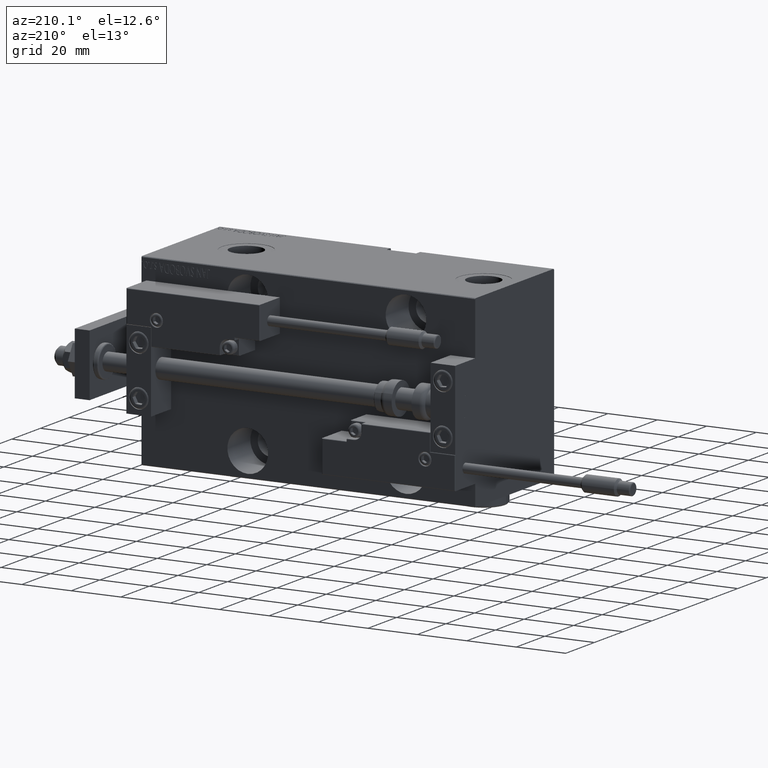
[diagram: clean part render]
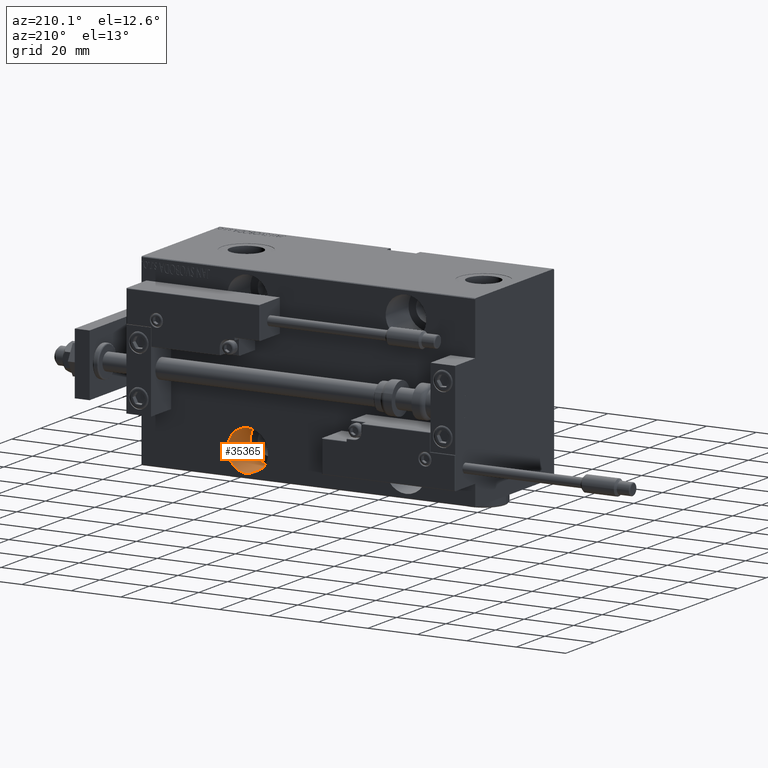
[diagram: same view with one face highlighted and labeled with its STEP entity id]
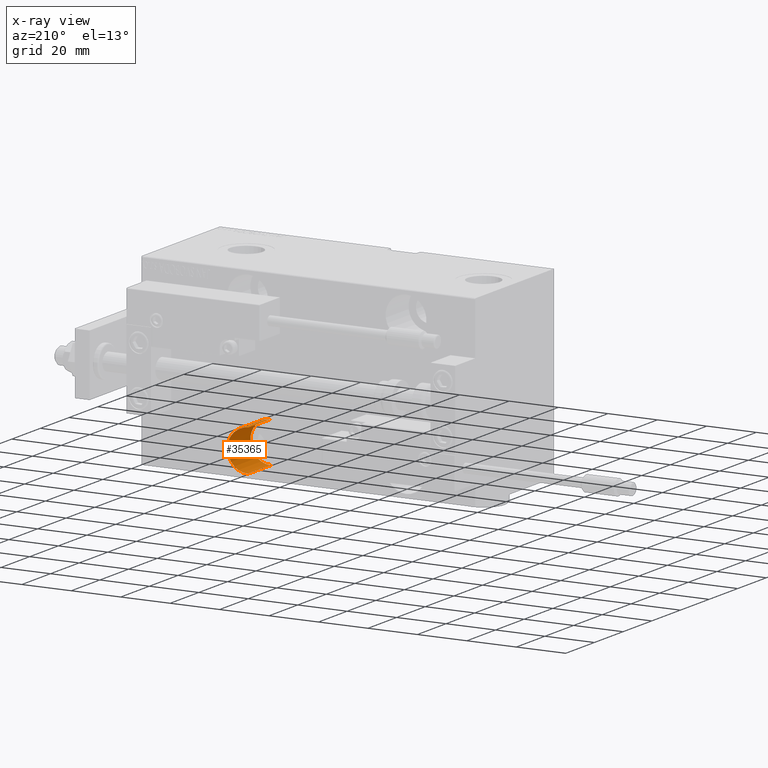
[diagram: x-ray of the same camera — body ghosted, the highlighted face saturated]
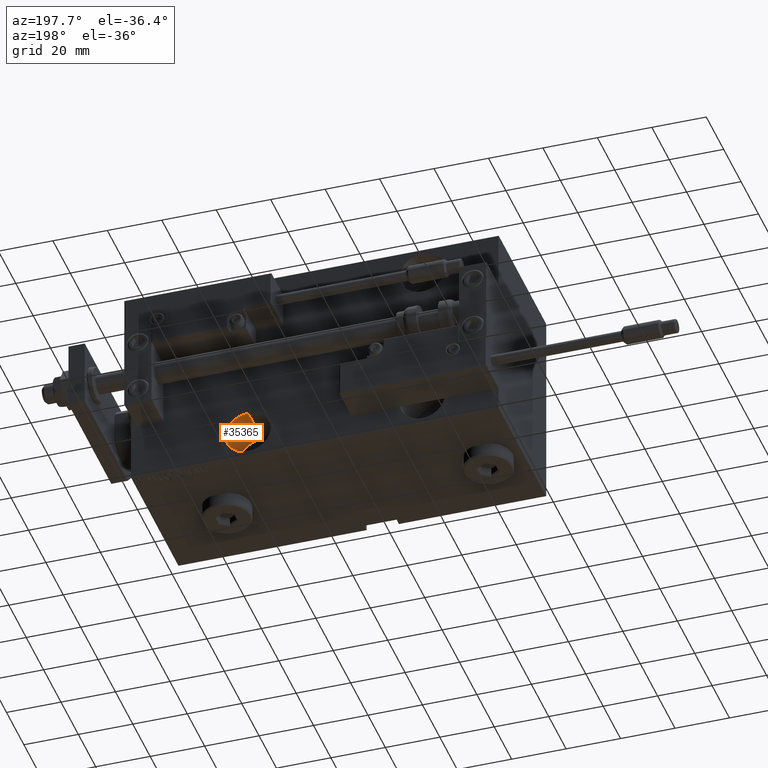
[diagram: same view with one face highlighted and labeled with its STEP entity id]
A machine part, auxiliary view. The second image highlights one B-rep face of the part: STEP entity #35365.
The next image is the same camera in x-ray: the body ghosted, the highlighted face saturated — about 0% of this face is hidden behind the body in this view.
A second angle (auxiliary view) of the same face is appended — the face is thin or edge-on in the first view.
In plain terms, the highlighted cylindrical surface (edge-blend (fillet) strip) has radius 8.25 mm, axis along (0, 1, -0).
Its self-contained STEP definition (entity closure, byte-faithful):
#2058 = EDGE_CURVE ( 'NONE', #16867, #43489, #46313, .T. ) ;
#8103 = DIRECTION ( 'NONE',  ( 0.000000000000000000, 0.000000000000000000, -1.000000000000000000 ) ) ;
#8612 = EDGE_CURVE ( 'NONE', #19389, #28300, #14854, .T. ) ;
#10436 = DIRECTION ( 'NONE',  ( 0.000000000000000000, -1.000000000000000000, 0.000000000000000000 ) ) ;
#14854 = CIRCLE ( 'NONE', #51469, 8.249999999999996447 ) ;
#15338 = EDGE_LOOP ( 'NONE', ( #30455, #17148, #39947, #17829 ) ) ;
#16867 = VERTEX_POINT ( 'NONE', #41039 ) ;
#17148 = ORIENTED_EDGE ( 'NONE', *, *, #34102, .T. ) ;
#17829 = ORIENTED_EDGE ( 'NONE', *, *, #30231, .F. ) ;
#18321 = DIRECTION ( 'NONE',  ( -0.000000000000000000, -1.000000000000000000, -0.000000000000000000 ) ) ;
#19013 = VECTOR ( 'NONE', #42027, 1000.000000000000000 ) ;
#19389 = VERTEX_POINT ( 'NONE', #28445 ) ;
#19600 = DIRECTION ( 'NONE',  ( 0.000000000000000000, -1.000000000000000000, 0.000000000000000000 ) ) ;
#20843 = DIRECTION ( 'NONE',  ( 0.000000000000000000, 0.000000000000000000, -1.000000000000000000 ) ) ;
#26401 = AXIS2_PLACEMENT_3D ( 'NONE', #32043, #32303, #20843 ) ;
#27624 = DIRECTION ( 'NONE',  ( 0.000000000000000000, 0.000000000000000000, -1.000000000000000000 ) ) ;
#27648 = CARTESIAN_POINT ( 'NONE',  ( 43.00000000000000000, -11.50000000000000000, -35.75000000000000711 ) ) ;
#28300 = VERTEX_POINT ( 'NONE', #27648 ) ;
#28445 = CARTESIAN_POINT ( 'NONE',  ( 43.00000000000000000, -11.50000000000000000, -19.25000000000001066 ) ) ;
#30038 = CARTESIAN_POINT ( 'NONE',  ( 43.00000000000000000, -11.50000000000000000, -35.75000000000000711 ) ) ;
#30231 = EDGE_CURVE ( 'NONE', #28300, #43489, #49821, .T. ) ;
#30255 = CARTESIAN_POINT ( 'NONE',  ( 43.00000000000000000, -27.50000000000000000, -27.50000000000000711 ) ) ;
#30455 = ORIENTED_EDGE ( 'NONE', *, *, #8612, .F. ) ;
#31733 = VECTOR ( 'NONE', #18321, 1000.000000000000000 ) ;
#32043 = CARTESIAN_POINT ( 'NONE',  ( 43.00000000000000000, -11.50000000000000000, -27.50000000000000711 ) ) ;
#32303 = DIRECTION ( 'NONE',  ( -0.000000000000000000, -1.000000000000000000, -0.000000000000000000 ) ) ;
#32827 = CYLINDRICAL_SURFACE ( 'NONE', #26401, 8.249999999999996447 ) ;
#34102 = EDGE_CURVE ( 'NONE', #19389, #16867, #49311, .T. ) ;
#35365 = ADVANCED_FACE ( 'NONE', ( #36208 ), #32827, .F. ) ;
#36208 = FACE_OUTER_BOUND ( 'NONE', #15338, .T. ) ;
#39947 = ORIENTED_EDGE ( 'NONE', *, *, #2058, .T. ) ;
#41039 = CARTESIAN_POINT ( 'NONE',  ( 43.00000000000000000, -27.50000000000000000, -19.25000000000001066 ) ) ;
#42027 = DIRECTION ( 'NONE',  ( -0.000000000000000000, -1.000000000000000000, -0.000000000000000000 ) ) ;
#42801 = CARTESIAN_POINT ( 'NONE',  ( 43.00000000000000000, -11.50000000000000000, -27.50000000000000711 ) ) ;
#43489 = VERTEX_POINT ( 'NONE', #47767 ) ;
#43828 = AXIS2_PLACEMENT_3D ( 'NONE', #30255, #10436, #27624 ) ;
#45922 = CARTESIAN_POINT ( 'NONE',  ( 43.00000000000000000, -11.50000000000000000, -19.25000000000001066 ) ) ;
#46313 = CIRCLE ( 'NONE', #43828, 8.249999999999996447 ) ;
#47767 = CARTESIAN_POINT ( 'NONE',  ( 43.00000000000000000, -27.50000000000000000, -35.75000000000000711 ) ) ;
#49311 = LINE ( 'NONE', #45922, #31733 ) ;
#49821 = LINE ( 'NONE', #30038, #19013 ) ;
#51469 = AXIS2_PLACEMENT_3D ( 'NONE', #42801, #19600, #8103 ) ;